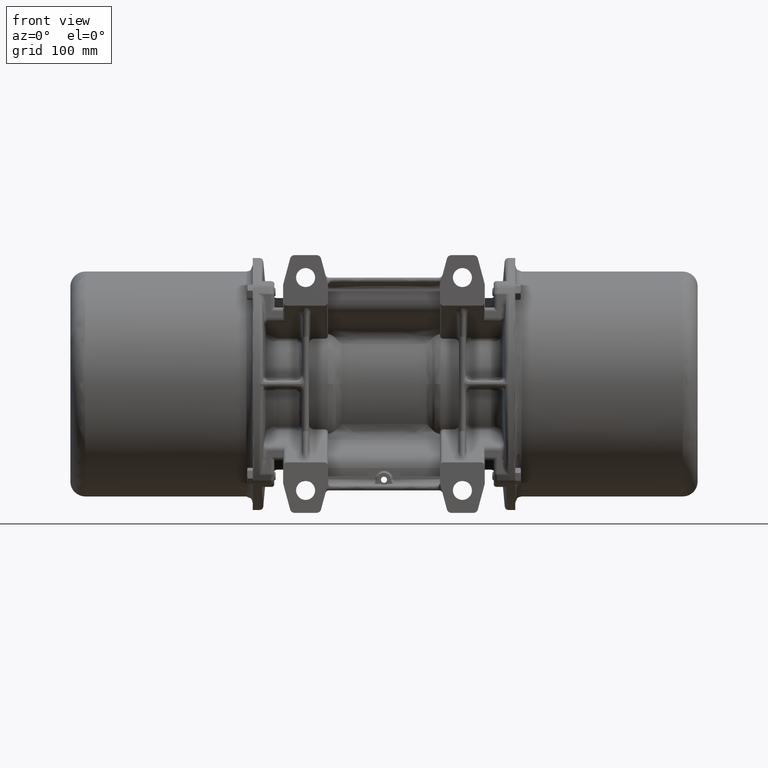
[diagram: clean part render]
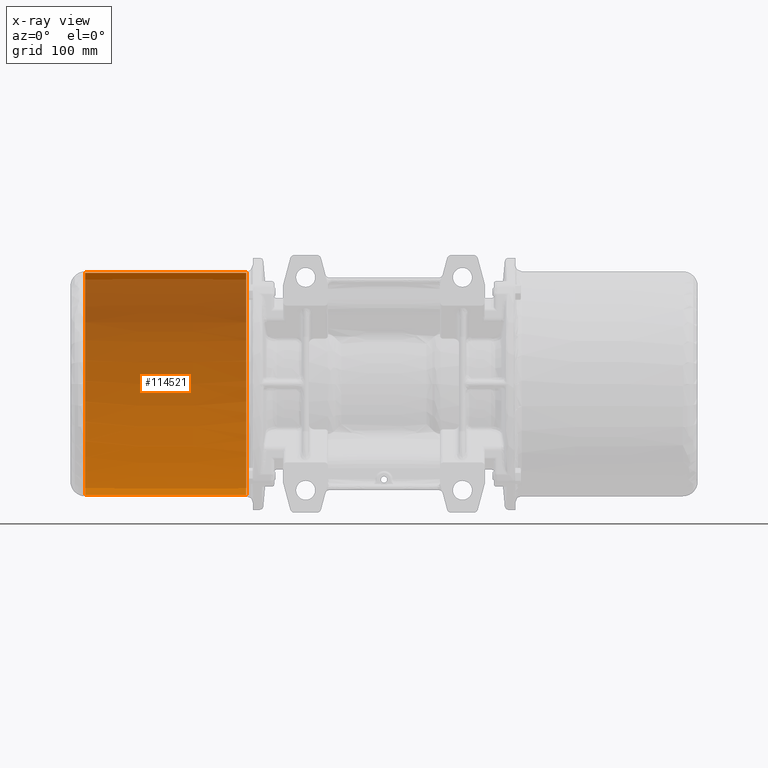
[diagram: x-ray — body ghosted, one internal face saturated and labeled with its STEP entity id]
A machine part, front view, then the same camera in x-ray: the body is ghosted and one INTERNAL B-rep face — a face not visible from any outside direction — is saturated and labeled: STEP entity #114521.
In plain terms, the highlighted face is a freeform B-spline surface patch.
Its self-contained STEP definition (entity closure, byte-faithful):
#501 = CARTESIAN_POINT ( 'NONE',  ( -306.7067428324685900, 843.3555497553845700, -29.50607960355228300 ) ) ;
#1627 = CARTESIAN_POINT ( 'NONE',  ( -306.7067431815569900, 832.7880172278133800, -9.400152092034208100 ) ) ;
#2650 = CARTESIAN_POINT ( 'NONE',  ( -258.7734125773110900, 750.1735939428388100, -163.8014404296875200 ) ) ;
#4951 = CARTESIAN_POINT ( 'NONE',  ( -162.9067439514763000, 809.4811444387470400, 15.36553385324496200 ) ) ;
#5115 = CARTESIAN_POINT ( 'NONE',  ( -162.9067459106439100, 750.1735907759760900, -163.8014404296874600 ) ) ;
#6086 = CARTESIAN_POINT ( 'NONE',  ( -306.7067459106446000, 750.1735953455603300, 34.59855957031254500 ) ) ;
#7764 = CARTESIAN_POINT ( 'NONE',  ( -306.7067435785356800, 820.7707547944363600, -135.1985983579489000 ) ) ;
#8326 = CARTESIAN_POINT ( 'NONE',  ( -210.8400765017072200, 833.1870774678807300, -120.0692846487887900 ) ) ;
#8892 = CARTESIAN_POINT ( 'NONE',  ( -210.8400763492934700, 837.8009189029174900, -17.76430248080657000 ) ) ;
#9454 = CARTESIAN_POINT ( 'NONE',  ( -210.8400761969310200, 842.4132056588847500, -102.8083078675234200 ) ) ;
#9865 = VERTEX_POINT ( 'NONE', #164837 ) ;
#10013 = CARTESIAN_POINT ( 'NONE',  ( -306.7067428635980900, 842.4132088257474600, -102.8083078675234200 ) ) ;
#10569 = CARTESIAN_POINT ( 'NONE',  ( -210.8400810763037000, 694.7057585076121300, -147.6149203774741900 ) ) ;
#11127 = CARTESIAN_POINT ( 'NONE',  ( -162.9067481955770500, 681.0045267565442400, 6.857899584304050200 ) ) ;
#11675 = CARTESIAN_POINT ( 'NONE',  ( -258.7734148622442400, 681.0045299234069500, 6.857899584304050200 ) ) ;
#12226 = CARTESIAN_POINT ( 'NONE',  ( -306.7067471727729100, 711.9666874690906300, -156.8410761253403200 ) ) ;
#12470 = CARTESIAN_POINT ( 'NONE',  ( -306.7067446485163500, 788.3805035707703200, -156.8410760557398200 ) ) ;
#12802 = CARTESIAN_POINT ( 'NONE',  ( -210.8400815760864800, 679.5764330391363000, -135.1985984865539200 ) ) ;
#13365 = CARTESIAN_POINT ( 'NONE',  ( -210.8400792439775300, 750.1735921786976200, 34.59855957031254500 ) ) ;
#13611 = CARTESIAN_POINT ( 'NONE',  ( -306.7067433734426300, 826.9792945757411600, -1.568328585149714200 ) ) ;
#14737 = CARTESIAN_POINT ( 'NONE',  ( -306.7067426758778200, 848.0958409885503200, -45.12584019565879600 ) ) ;
#15067 = CARTESIAN_POINT ( 'NONE',  ( -306.7067471667125500, 712.1501538450767200, 27.19458294460308400 ) ) ;
#16326 = B_SPLINE_CURVE_WITH_KNOTS ( 'NONE', 3,
 ( #74979, #51038, #64123, #154385 ),
 .UNSPECIFIED., .F., .F.,
 ( 4, 4 ),
 ( 0.0000000000000000000, 143.8000000000008100 ),
 .UNSPECIFIED. ) ;
#19162 = CARTESIAN_POINT ( 'NONE',  ( -162.9067452703144500, 769.5575181513195300, 32.84886395532421200 ) ) ;
#19330 = CARTESIAN_POINT ( 'NONE',  ( -162.9067443149813200, 798.4771825879279300, 22.33277670473305000 ) ) ;
#19761 = EDGE_LOOP ( 'NONE', ( #60761, #131341, #113529, #37569 ) ) ;
#20293 = CARTESIAN_POINT ( 'NONE',  ( -210.8400792439775300, 750.1735921786976200, 34.59855957031254500 ) ) ;
#20843 = CARTESIAN_POINT ( 'NONE',  ( -306.7067440783183100, 805.6414293485792100, -147.6149202764299800 ) ) ;
#21395 = CARTESIAN_POINT ( 'NONE',  ( -258.7734100401093500, 826.9792929923097500, -1.568328585149603200 ) ) ;
#21953 = CARTESIAN_POINT ( 'NONE',  ( -258.7734125773110300, 750.1735939434213400, -164.4409028246661300 ) ) ;
#22507 = CARTESIAN_POINT ( 'NONE',  ( -258.7734092792213100, 850.0127426643189200, -64.60087423456384700 ) ) ;
#23053 = CARTESIAN_POINT ( 'NONE',  ( -258.7734098350410400, 833.1870790513120300, -120.0692846487887900 ) ) ;
#23599 = CARTESIAN_POINT ( 'NONE',  ( -306.7067486529151700, 667.1601103381314000, -120.0692848000121700 ) ) ;
#24140 = CARTESIAN_POINT ( 'NONE',  ( -162.9067482427529700, 679.5764314557048900, -135.1985984865539200 ) ) ;
#24698 = CARTESIAN_POINT ( 'NONE',  ( -258.7734138394395100, 711.9666858856592200, -156.8410761253403200 ) ) ;
#25267 = CARTESIAN_POINT ( 'NONE',  ( -258.7734156554871600, 656.9916394690823200, -29.50607977329911000 ) ) ;
#25836 = CARTESIAN_POINT ( 'NONE',  ( -210.8400824787083300, 652.2524331045100300, -84.07930508046152300 ) ) ;
#26412 = CARTESIAN_POINT ( 'NONE',  ( -258.7734128990471200, 740.4340620263009200, 34.27960097513732800 ) ) ;
#26651 = CARTESIAN_POINT ( 'NONE',  ( -306.7067452703152500, 769.5575229016137700, 32.84886395532410600 ) ) ;
#27217 = CARTESIAN_POINT ( 'NONE',  ( -306.7067459106444900, 750.1735953455603300, 34.59855957031254500 ) ) ;
#27542 = CARTESIAN_POINT ( 'NONE',  ( -210.8400798843068700, 730.7896646258316200, 32.84886392001284600 ) ) ;
#27771 = CARTESIAN_POINT ( 'NONE',  ( -306.7067449578598800, 779.0161130593541000, 30.47969960946622700 ) ) ;
#31062 = CARTESIAN_POINT ( 'NONE',  ( -258.7734124701154300, 753.4186026243154400, 34.59855957326824000 ) ) ;
#31633 = CARTESIAN_POINT ( 'NONE',  ( -162.9067446545761000, 788.1970321092371700, 27.19458301386917800 ) ) ;
#32770 = CARTESIAN_POINT ( 'NONE',  ( -258.7734125773111500, 750.1735937621290300, 34.59855957031254500 ) ) ;
#33878 = CARTESIAN_POINT ( 'NONE',  ( -162.9067431815561800, 832.7880124775193700, -9.400152092034208100 ) ) ;
#34446 = CARTESIAN_POINT ( 'NONE',  ( -306.7067452672172900, 769.6513084283952800, -162.5225156219892700 ) ) ;
#35002 = CARTESIAN_POINT ( 'NONE',  ( -258.7734106181435400, 809.4811476056098600, 15.36553385324496200 ) ) ;
#35547 = CARTESIAN_POINT ( 'NONE',  ( -162.9067440783175000, 805.6414245982850800, -147.6149202764299800 ) ) ;
#36099 = CARTESIAN_POINT ( 'NONE',  ( -162.9067435785349600, 820.7707500441423500, -135.1985983579489000 ) ) ;
#36651 = CARTESIAN_POINT ( 'NONE',  ( -210.8400817811797500, 673.3678930144009200, -1.568328725064682700 ) ) ;
#37207 = CARTESIAN_POINT ( 'NONE',  ( -306.7067481955776300, 681.0045315068382500, 6.857899584304050200 ) ) ;
#37414 = FACE_OUTER_BOUND ( 'NONE', #19761, .T. ) ;
#37569 = ORIENTED_EDGE ( 'NONE', *, *, #121310, .F. ) ;
#37762 = CARTESIAN_POINT ( 'NONE',  ( -306.7067491453755700, 652.2524362713726300, -84.07930508046152300 ) ) ;
#38329 = CARTESIAN_POINT ( 'NONE',  ( -258.7734141729737300, 701.8700017918117700, 22.33277661673976800 ) ) ;
#38889 = CARTESIAN_POINT ( 'NONE',  ( -306.7067489888206600, 656.9916410525136100, -29.50607977329911000 ) ) ;
#39133 = CARTESIAN_POINT ( 'NONE',  ( -306.7067430159606800, 837.8009220697803100, -17.76430248080646000 ) ) ;
#40157 = CARTESIAN_POINT ( 'NONE',  ( -210.8400792439773600, 750.1735923594073900, -163.8014404296875200 ) ) ;
#40269 = CARTESIAN_POINT ( 'NONE',  ( -306.7067431683740900, 833.1870806347433200, -120.0692846487888500 ) ) ;
#41158 = CARTESIAN_POINT ( 'NONE',  ( -258.7734138333790400, 712.1501522616454200, 27.19458294460308400 ) ) ;
#42494 = B_SPLINE_SURFACE_WITH_KNOTS ( 'NONE', 3, 3, ( 
 ( #108840, #20293, #32770, #6086 ),
 ( #111100, #72482, #31062, #161046 ),
 ( #83880, #57711, #44118, #45793 ),
 ( #19162, #124201, #70252, #134978 ),
 ( #46346, #44685, #136649, #109403 ),
 ( #31633, #109975, #135541, #137207 ),
 ( #58825, #149669, #150224, #82767 ),
 ( #4951, #95809, #35002, #137767 ),
 ( #163814, #74714, #165492, #73593 ),
 ( #113879, #125884, #21395, #59933 ),
 ( #33878, #150775, #138896, #153042 ),
 ( #164940, #8892, #73035, #98596 ),
 ( #140012, #99721, #127003, #100829 ),
 ( #164369, #126443, #86681, #46896 ),
 ( #100269, #48577, #22507, #163268 ),
 ( #85551, #113318, #86102, #138330 ),
 ( #124757, #9454, #61061, #10013 ),
 ( #48026, #8326, #23053, #151902 ),
 ( #36099, #112757, #87806, #7764 ),
 ( #35547, #139449, #99153, #20843 ),
 ( #74159, #61619, #49138, #62191 ),
 ( #111649, #87243, #112194, #34446 ),
 ( #125325, #152473, #21953, #47469 ),
 ( #60498, #151339, #154130, #140560 ),
 ( #155244, #62746, #24698, #12226 ),
 ( #167712, #10569, #64431, #115551 ),
 ( #24140, #12802, #64995, #101381 ),
 ( #129221, #141105, #50236, #23599 ),
 ( #166046, #89485, #103608, #49686 ),
 ( #153587, #25836, #114988, #37762 ),
 ( #141665, #114425, #63294, #75838 ),
 ( #116681, #76396, #77530, #166590 ),
 ( #127557, #168276, #25267, #38889 ),
 ( #102466, #142783, #154676, #75281 ),
 ( #129780, #51913, #128662, #101920 ),
 ( #88375, #36651, #88941, #50782 ),
 ( #11127, #76956, #11675, #37207 ),
 ( #116114, #128106, #63868, #167148 ),
 ( #90044, #103037, #38329, #51349 ),
 ( #142230, #90606, #41158, #15067 ),
 ( #119530, #155807, #92851, #130344 ),
 ( #158052, #27542, #66675, #53043 ),
 ( #131462, #143924, #26412, #130905 ),
 ( #78643, #66117, #156931, #117256 ),
 ( #143355, #13365, #93404, #92289 ) ),
 .UNSPECIFIED., .T., .F., .F.,
 ( 4, 1, 1, 1, 1, 1, 1, 1, 1, 1, 1, 1, 1, 1, 1, 1, 1, 1, 1, 1, 1, 1, 1, 1, 1, 1, 1, 1, 1, 1, 1, 1, 1, 1, 1, 1, 1, 1, 1, 1, 1, 1, 4 ),
 ( 4, 4 ),
 ( 0.0000000000000000000, 9.735026586559731900, 19.47005317311946700, 29.20507975967919400, 38.94010634623892700, 48.67513293279865400, 63.27034235097269000, 77.86555176914669100, 87.60057835570640300, 97.33560494226613000, 107.0706315288258700, 116.8056581153856000, 136.2522587567704900, 155.6988593981552900, 175.1454600395401000, 194.5920606809249600, 214.0386613223097100, 233.4852619636945700, 252.9318626050794300, 272.3784632464641500, 291.8250638878489600, 311.2716645292338200, 330.7182651706186800, 350.1648658120034800, 369.6114664533882900, 389.0580670947730900, 408.5046677361579600, 427.9512683775427000, 447.3978690189275700, 466.8444696603124300, 486.2910703016972300, 505.7376709430820900, 515.4726975296417800, 525.2077241162014600, 534.9427507027611500, 544.6777772893209400, 559.2729867074949700, 573.8681961256688700, 583.6032227122286700, 593.3382492987883600, 603.0732758853481500, 612.8083024719079500, 622.5433290584676300 ),
 ( 0.0000000000000000000, 143.8000000000008100 ),
 .UNSPECIFIED. ) ;
#44118 = CARTESIAN_POINT ( 'NONE',  ( -258.7734122555751800, 759.9131254985380800, 34.27960099287946600 ) ) ;
#44685 = CARTESIAN_POINT ( 'NONE',  ( -210.8400782911927800, 779.0161098924915000, 30.47969960946611700 ) ) ;
#45793 = CARTESIAN_POINT ( 'NONE',  ( -306.7067455889086300, 759.9131270819693800, 34.27960099287946600 ) ) ;
#46346 = CARTESIAN_POINT ( 'NONE',  ( -162.9067449578591600, 779.0161083090600900, 30.47969960946611700 ) ) ;
#46896 = CARTESIAN_POINT ( 'NONE',  ( -306.7067426758779300, 848.0958409885503200, -45.12584019565862500 ) ) ;
#47469 = CARTESIAN_POINT ( 'NONE',  ( -306.7067459106443700, 750.1735955268527500, -164.4409028246661300 ) ) ;
#48026 = CARTESIAN_POINT ( 'NONE',  ( -162.9067431683736200, 833.1870758844493100, -120.0692846487887900 ) ) ;
#48577 = CARTESIAN_POINT ( 'NONE',  ( -210.8400759458876100, 850.0127410808875100, -64.60087423456384700 ) ) ;
#49138 = CARTESIAN_POINT ( 'NONE',  ( -258.7734113151829500, 788.3805019873389000, -156.8410760557398200 ) ) ;
#49686 = CARTESIAN_POINT ( 'NONE',  ( -306.7067489576912200, 657.9339821156835300, -102.8083080355538500 ) ) ;
#49922 = CARTESIAN_POINT ( 'NONE',  ( -306.7067459106444900, 750.1735955262702200, -163.8014404296874600 ) ) ;
#50236 = CARTESIAN_POINT ( 'NONE',  ( -258.7734153195816600, 667.1601087547001000, -120.0692848000121700 ) ) ;
#50782 = CARTESIAN_POINT ( 'NONE',  ( -306.7067484478469600, 673.3678961812637500, -1.568328725064682700 ) ) ;
#51038 = CARTESIAN_POINT ( 'NONE',  ( -210.8400792439775300, 750.1735921786976200, 34.59855957031254500 ) ) ;
#51349 = CARTESIAN_POINT ( 'NONE',  ( -306.7067475063071200, 701.8700033752431900, 22.33277661673976800 ) ) ;
#51590 = CARTESIAN_POINT ( 'NONE',  ( -306.7067435785357900, 820.7707547944363600, -135.1985983579489000 ) ) ;
#51913 = CARTESIAN_POINT ( 'NONE',  ( -210.8400819730649100, 667.5591703765957200, -9.400152242530657200 ) ) ;
#52155 = CARTESIAN_POINT ( 'NONE',  ( -306.7067456961688700, 756.6661664940335200, -163.8014404237738100 ) ) ;
#53043 = CARTESIAN_POINT ( 'NONE',  ( -306.7067465509740600, 730.7896677926943300, 32.84886392001284600 ) ) ;
#53090 = EDGE_CURVE ( 'NONE', #116266, #137510, #16326, .T. ) ;
#57318 = CARTESIAN_POINT ( 'NONE',  ( -162.9067433734419100, 826.9792898254474900, -1.568328585149603800 ) ) ;
#57711 = CARTESIAN_POINT ( 'NONE',  ( -210.8400789222415600, 759.9131239151066700, 34.27960099287946600 ) ) ;
#58825 = CARTESIAN_POINT ( 'NONE',  ( -162.9067443149813200, 798.4771825879275900, 22.33277670473305000 ) ) ;
#59933 = CARTESIAN_POINT ( 'NONE',  ( -306.7067433734429200, 826.9792945757411600, -1.568328585149603200 ) ) ;
#60498 = CARTESIAN_POINT ( 'NONE',  ( -162.9067465540712200, 730.6958778715213600, -162.5225156574713300 ) ) ;
#60761 = ORIENTED_EDGE ( 'NONE', *, *, #110843, .F. ) ;
#61061 = CARTESIAN_POINT ( 'NONE',  ( -258.7734095302647600, 842.4132072423160500, -102.8083078675234200 ) ) ;
#61619 = CARTESIAN_POINT ( 'NONE',  ( -210.8400779818492200, 788.3805004039074900, -156.8410760557398200 ) ) ;
#62191 = CARTESIAN_POINT ( 'NONE',  ( -306.7067446485163500, 788.3805035707703200, -156.8410760557398200 ) ) ;
#62746 = CARTESIAN_POINT ( 'NONE',  ( -210.8400805061058100, 711.9666843022280300, -156.8410761253403200 ) ) ;
#63294 = CARTESIAN_POINT ( 'NONE',  ( -258.7734158754009300, 650.3344450406480100, -64.60087441643807400 ) ) ;
#63868 = CARTESIAN_POINT ( 'NONE',  ( -258.7734145364789200, 690.8660399536842100, 15.36553374520588400 ) ) ;
#64123 = CARTESIAN_POINT ( 'NONE',  ( -258.7734125773111500, 750.1735937621290300, 34.59855957031254500 ) ) ;
#64431 = CARTESIAN_POINT ( 'NONE',  ( -258.7734144096374400, 694.7057600910434300, -147.6149203774741900 ) ) ;
#64995 = CARTESIAN_POINT ( 'NONE',  ( -258.7734149094199600, 679.5764346225677200, -135.1985984865539200 ) ) ;
#66117 = CARTESIAN_POINT ( 'NONE',  ( -210.8400793511732200, 746.9285833165109800, 34.59855956735685800 ) ) ;
#66675 = CARTESIAN_POINT ( 'NONE',  ( -258.7734132176405500, 730.7896662092629200, 32.84886392001284600 ) ) ;
#67360 = CARTESIAN_POINT ( 'NONE',  ( -162.9067459106439100, 750.1735907759760900, -163.8014404296874600 ) ) ;
#69847 = CARTESIAN_POINT ( 'NONE',  ( -162.9067431683736200, 833.1870758844496500, -120.0692846487888400 ) ) ;
#70252 = CARTESIAN_POINT ( 'NONE',  ( -258.7734119369818000, 769.5575213181823500, 32.84886395532421200 ) ) ;
#71541 = CARTESIAN_POINT ( 'NONE',  ( -162.9067456961680300, 756.6661617437393900, -163.8014404237738400 ) ) ;
#72482 = CARTESIAN_POINT ( 'NONE',  ( -210.8400791367818100, 753.4186010408842500, 34.59855957326824000 ) ) ;
#73035 = CARTESIAN_POINT ( 'NONE',  ( -258.7734096826270600, 837.8009204863489000, -17.76430248080657000 ) ) ;
#73593 = CARTESIAN_POINT ( 'NONE',  ( -306.7067436257109400, 819.3426592348166700, 6.857899710307369100 ) ) ;
#74159 = CARTESIAN_POINT ( 'NONE',  ( -162.9067446485157400, 788.3804988204761900, -156.8410760557398200 ) ) ;
#74515 = B_SPLINE_CURVE_WITH_KNOTS ( 'NONE', 3,
 ( #67360, #40157, #2650, #92978 ),
 .UNSPECIFIED., .F., .F.,
 ( 4, 4 ),
 ( 0.0000000000000000000, 143.8000000000008100 ),
 .UNSPECIFIED. ) ;
#74708 = B_SPLINE_CURVE_WITH_KNOTS ( 'NONE', 3,
 ( #49922, #52155, #116925, #12470, #92514, #51590, #40269, #116358, #91415, #157171, #14737, #501, #39133, #1627, #13611, #104399, #105530, #130586, #90283, #27771, #26651, #131134, #130015, #27217 ),
 .UNSPECIFIED., .F., .F.,
 ( 4, 1, 1, 1, 1, 1, 1, 1, 1, 1, 1, 1, 1, 1, 1, 1, 1, 1, 1, 1, 1, 4 ),
 ( 0.0000000000000000000, 0.06247468965990149400, 0.1249493793198027900, 0.1874240689797040900, 0.2498987586396055900, 0.3123734482995070800, 0.3748481379594084100, 0.4373228276193096800, 0.4997975172792111800, 0.5622722069391125100, 0.6247468965990139500, 0.6560219135565741300, 0.6872969305141342100, 0.7185719474716941700, 0.7498469644292542500, 0.7967359398207269900, 0.8436249152121996200, 0.8748999321697598100, 0.9061749491273198800, 0.9374499660848799600, 0.9687249830424399200, 1.000000000000000000 ),
 .UNSPECIFIED. ) ;
#74714 = CARTESIAN_POINT ( 'NONE',  ( -210.8400769590440400, 819.3426560679539500, 6.857899710307369100 ) ) ;
#74979 = CARTESIAN_POINT ( 'NONE',  ( -162.9067459106439100, 750.1735905952662100, 34.59855957031254500 ) ) ;
#75281 = CARTESIAN_POINT ( 'NONE',  ( -306.7067488053286900, 662.5462687167282600, -17.76430264043482800 ) ) ;
#75838 = CARTESIAN_POINT ( 'NONE',  ( -306.7067492087344400, 650.3344466240791900, -64.60087441643807400 ) ) ;
#76396 = CARTESIAN_POINT ( 'NONE',  ( -210.8400824787441900, 652.2513466809393800, -45.12584037404110400 ) ) ;
#76956 = CARTESIAN_POINT ( 'NONE',  ( -210.8400815289105300, 681.0045283399756500, 6.857899584304050200 ) ) ;
#77530 = CARTESIAN_POINT ( 'NONE',  ( -258.7734158120779300, 652.2513482643707900, -45.12584037404110400 ) ) ;
#78643 = CARTESIAN_POINT ( 'NONE',  ( -162.9067460178396200, 746.9285817330796800, 34.59855956735685800 ) ) ;
#82767 = CARTESIAN_POINT ( 'NONE',  ( -306.7067443149821300, 798.4771873382217100, 22.33277670473305000 ) ) ;
#82925 = CARTESIAN_POINT ( 'NONE',  ( -162.9067430159598800, 837.8009173194864200, -17.76430248080657000 ) ) ;
#83880 = CARTESIAN_POINT ( 'NONE',  ( -162.9067455889079400, 759.9131223316752500, 34.27960099287946600 ) ) ;
#84046 = CARTESIAN_POINT ( 'NONE',  ( -162.9067428635975100, 842.4132040754536800, -102.8083078675234700 ) ) ;
#84599 = CARTESIAN_POINT ( 'NONE',  ( -162.9067459106439100, 750.1735905952662100, 34.59855957031254500 ) ) ;
#85157 = CARTESIAN_POINT ( 'NONE',  ( -162.9067458034482200, 753.4185994574531800, 34.59855957326824000 ) ) ;
#85551 = CARTESIAN_POINT ( 'NONE',  ( -162.9067426759128800, 848.0947498856461400, -84.07930490208109100 ) ) ;
#86102 = CARTESIAN_POINT ( 'NONE',  ( -258.7734093425800700, 848.0947530525088500, -84.07930490208109100 ) ) ;
#86681 = CARTESIAN_POINT ( 'NONE',  ( -258.7734093425444300, 848.0958394051189100, -45.12584019565862500 ) ) ;
#87243 = CARTESIAN_POINT ( 'NONE',  ( -210.8400786005501000, 769.6513052615325700, -162.5225156219892700 ) ) ;
#87806 = CARTESIAN_POINT ( 'NONE',  ( -258.7734102452021700, 820.7707532110051700, -135.1985983579489000 ) ) ;
#88375 = CARTESIAN_POINT ( 'NONE',  ( -162.9067484478461300, 673.3678914309696200, -1.568328725064682700 ) ) ;
#88941 = CARTESIAN_POINT ( 'NONE',  ( -258.7734151145134500, 673.3678945978323300, -1.568328725064682700 ) ) ;
#89485 = CARTESIAN_POINT ( 'NONE',  ( -210.8400822910241500, 657.9339789488208200, -102.8083080355538500 ) ) ;
#90044 = CARTESIAN_POINT ( 'NONE',  ( -162.9067475063065200, 701.8699986249490600, 22.33277661673976800 ) ) ;
#90283 = CARTESIAN_POINT ( 'NONE',  ( -306.7067446545769400, 788.1970368595314100, 27.19458301386928800 ) ) ;
#90606 = CARTESIAN_POINT ( 'NONE',  ( -210.8400805000453300, 712.1501506782141200, 27.19458294460308400 ) ) ;
#91415 = CARTESIAN_POINT ( 'NONE',  ( -306.7067426759134600, 848.0947546359401500, -84.07930490208120500 ) ) ;
#92289 = CARTESIAN_POINT ( 'NONE',  ( -306.7067459106446000, 750.1735953455603300, 34.59855957031254500 ) ) ;
#92514 = CARTESIAN_POINT ( 'NONE',  ( -306.7067440783183100, 805.6414293485790900, -147.6149202764299800 ) ) ;
#92851 = CARTESIAN_POINT ( 'NONE',  ( -258.7734135300957500, 721.3310760558382500, 30.47969955692453300 ) ) ;
#92978 = CARTESIAN_POINT ( 'NONE',  ( -306.7067459106444900, 750.1735955262702200, -163.8014404296874600 ) ) ;
#93404 = CARTESIAN_POINT ( 'NONE',  ( -258.7734125773111500, 750.1735937621290300, 34.59855957031254500 ) ) ;
#95571 = CARTESIAN_POINT ( 'NONE',  ( -306.7067459106444900, 750.1735953455603300, 34.59855957031254500 ) ) ;
#95809 = CARTESIAN_POINT ( 'NONE',  ( -210.8400772848099200, 809.4811460221784500, 15.36553385324496200 ) ) ;
#95976 = CARTESIAN_POINT ( 'NONE',  ( -162.9067452703144500, 769.5575181513198700, 32.84886395532421200 ) ) ;
#97650 = CARTESIAN_POINT ( 'NONE',  ( -162.9067426125540100, 850.0127394974564400, -64.60087423456384700 ) ) ;
#98213 = CARTESIAN_POINT ( 'NONE',  ( -162.9067436257105600, 819.3426544845228800, 6.857899710307371800 ) ) ;
#98596 = CARTESIAN_POINT ( 'NONE',  ( -306.7067430159605700, 837.8009220697803100, -17.76430248080657000 ) ) ;
#99153 = CARTESIAN_POINT ( 'NONE',  ( -258.7734107449848600, 805.6414277651478000, -147.6149202764299800 ) ) ;
#99721 = CARTESIAN_POINT ( 'NONE',  ( -210.8400761658015800, 843.3555465885218600, -29.50607960355228300 ) ) ;
#100269 = CARTESIAN_POINT ( 'NONE',  ( -162.9067426125540100, 850.0127394974561000, -64.60087423456384700 ) ) ;
#100829 = CARTESIAN_POINT ( 'NONE',  ( -306.7067428324687100, 843.3555497553845700, -29.50607960355228300 ) ) ;
#101381 = CARTESIAN_POINT ( 'NONE',  ( -306.7067482427533500, 679.5764362059990200, -135.1985984865539200 ) ) ;
#101920 = CARTESIAN_POINT ( 'NONE',  ( -306.7067486397320400, 667.5591735434584300, -9.400152242530657200 ) ) ;
#102466 = CARTESIAN_POINT ( 'NONE',  ( -162.9067488053279600, 662.5462639664342500, -17.76430264043482800 ) ) ;
#103037 = CARTESIAN_POINT ( 'NONE',  ( -210.8400808396400000, 701.8700002083803600, 22.33277661673976800 ) ) ;
#103608 = CARTESIAN_POINT ( 'NONE',  ( -258.7734156243577700, 657.9339805322521200, -102.8083080355538500 ) ) ;
#104399 = CARTESIAN_POINT ( 'NONE',  ( -306.7067436257114000, 819.3426592348167800, 6.857899710307480100 ) ) ;
#104607 = EDGE_CURVE ( 'NONE', #130700, #116266, #124937, .T. ) ;
#105530 = CARTESIAN_POINT ( 'NONE',  ( -306.7067439514768800, 809.4811491890411600, 15.36553385324485000 ) ) ;
#107000 = CARTESIAN_POINT ( 'NONE',  ( -162.9067459106439100, 750.1735907759760900, -163.8014404296874600 ) ) ;
#108840 = CARTESIAN_POINT ( 'NONE',  ( -162.9067459106439100, 750.1735905952662100, 34.59855957031254500 ) ) ;
#109403 = CARTESIAN_POINT ( 'NONE',  ( -306.7067449578598800, 779.0161130593541000, 30.47969960946611700 ) ) ;
#109575 = CARTESIAN_POINT ( 'NONE',  ( -162.9067439514763000, 809.4811444387473800, 15.36553385324496700 ) ) ;
#109975 = CARTESIAN_POINT ( 'NONE',  ( -210.8400779879097200, 788.1970336926685800, 27.19458301386917800 ) ) ;
#110144 = CARTESIAN_POINT ( 'NONE',  ( -162.9067455889079400, 759.9131223316755900, 34.27960099287946600 ) ) ;
#110705 = CARTESIAN_POINT ( 'NONE',  ( -162.9067440783175000, 805.6414245982853100, -147.6149202764299800 ) ) ;
#110843 = EDGE_CURVE ( 'NONE', #130700, #9865, #74515, .T. ) ;
#111100 = CARTESIAN_POINT ( 'NONE',  ( -162.9067458034482200, 753.4185994574528400, 34.59855957326824000 ) ) ;
#111649 = CARTESIAN_POINT ( 'NONE',  ( -162.9067452672164800, 769.6513036781011600, -162.5225156219892700 ) ) ;
#112194 = CARTESIAN_POINT ( 'NONE',  ( -258.7734119338838400, 769.6513068449639800, -162.5225156219892700 ) ) ;
#112757 = CARTESIAN_POINT ( 'NONE',  ( -210.8400769118685800, 820.7707516275737600, -135.1985983579489000 ) ) ;
#113318 = CARTESIAN_POINT ( 'NONE',  ( -210.8400760092464700, 848.0947514690774400, -84.07930490208109100 ) ) ;
#113529 = ORIENTED_EDGE ( 'NONE', *, *, #53090, .T. ) ;
#113879 = CARTESIAN_POINT ( 'NONE',  ( -162.9067433734419100, 826.9792898254471500, -1.568328585149603200 ) ) ;
#114425 = CARTESIAN_POINT ( 'NONE',  ( -210.8400825420673100, 650.3344434572165900, -64.60087441643807400 ) ) ;
#114521 = ADVANCED_FACE ( 'NONE', ( #37414 ), #42494, .F. ) ;
#114988 = CARTESIAN_POINT ( 'NONE',  ( -258.7734158120420600, 652.2524346879412200, -84.07930508046152300 ) ) ;
#115551 = CARTESIAN_POINT ( 'NONE',  ( -306.7067477429708900, 694.7057616744748400, -147.6149203774741900 ) ) ;
#116114 = CARTESIAN_POINT ( 'NONE',  ( -162.9067478698115100, 690.8660367868215000, 15.36553374520588400 ) ) ;
#116266 = VERTEX_POINT ( 'NONE', #128550 ) ;
#116358 = CARTESIAN_POINT ( 'NONE',  ( -306.7067428635982100, 842.4132088257474600, -102.8083078675234200 ) ) ;
#116681 = CARTESIAN_POINT ( 'NONE',  ( -162.9067491454106000, 652.2513450975080800, -45.12584037404110400 ) ) ;
#116925 = CARTESIAN_POINT ( 'NONE',  ( -306.7067452672170600, 769.6513084283952800, -162.5225156219892700 ) ) ;
#117256 = CARTESIAN_POINT ( 'NONE',  ( -306.7067460178403200, 746.9285864833736900, 34.59855956735685800 ) ) ;
#119530 = CARTESIAN_POINT ( 'NONE',  ( -162.9067468634285400, 721.3310728889755400, 30.47969955692453300 ) ) ;
#121310 = EDGE_CURVE ( 'NONE', #9865, #137510, #74708, .T. ) ;
#122685 = CARTESIAN_POINT ( 'NONE',  ( -162.9067435785349600, 820.7707500441426900, -135.1985983579489000 ) ) ;
#124201 = CARTESIAN_POINT ( 'NONE',  ( -210.8400786036480700, 769.5575197347509400, 32.84886395532421200 ) ) ;
#124757 = CARTESIAN_POINT ( 'NONE',  ( -162.9067428635975100, 842.4132040754533400, -102.8083078675234200 ) ) ;
#124937 = B_SPLINE_CURVE_WITH_KNOTS ( 'NONE', 3,
 ( #5115, #71541, #160653, #135137, #110705, #122685, #69847, #84046, #149837, #97650, #148728, #162878, #82925, #147595, #57318, #98213, #109575, #19330, #161204, #162323, #95976, #110144, #85157, #84599 ),
 .UNSPECIFIED., .F., .F.,
 ( 4, 1, 1, 1, 1, 1, 1, 1, 1, 1, 1, 1, 1, 1, 1, 1, 1, 1, 1, 1, 1, 4 ),
 ( 0.0000000000000000000, 0.06247468965990152900, 0.1249493793198028800, 0.1874240689797039600, 0.2498987586396054800, 0.3123734482995070300, 0.3748481379594081900, 0.4373228276193096800, 0.4997975172792110700, 0.5622722069391124000, 0.6247468965990140600, 0.6560219135565741300, 0.6872969305141342100, 0.7185719474716941700, 0.7498469644292541400, 0.7967359398207268800, 0.8436249152121997300, 0.8748999321697598100, 0.9061749491273198800, 0.9374499660848798500, 0.9687249830424399200, 1.000000000000000000 ),
 .UNSPECIFIED. ) ;
#125325 = CARTESIAN_POINT ( 'NONE',  ( -162.9067459106437900, 750.1735907765586300, -164.4409028246661300 ) ) ;
#125884 = CARTESIAN_POINT ( 'NONE',  ( -210.8400767067756200, 826.9792914088784500, -1.568328585149603200 ) ) ;
#126443 = CARTESIAN_POINT ( 'NONE',  ( -210.8400760092108300, 848.0958378216875000, -45.12584019565862500 ) ) ;
#127003 = CARTESIAN_POINT ( 'NONE',  ( -258.7734094991352000, 843.3555481719532700, -29.50607960355228300 ) ) ;
#127557 = CARTESIAN_POINT ( 'NONE',  ( -162.9067489888198600, 656.9916363022196000, -29.50607977329911000 ) ) ;
#128106 = CARTESIAN_POINT ( 'NONE',  ( -210.8400812031451300, 690.8660383702528000, 15.36553374520588400 ) ) ;
#128550 = CARTESIAN_POINT ( 'NONE',  ( -162.9067459106439100, 750.1735905952662100, 34.59855957031254500 ) ) ;
#128662 = CARTESIAN_POINT ( 'NONE',  ( -258.7734153063986500, 667.5591719600271300, -9.400152242530657200 ) ) ;
#129221 = CARTESIAN_POINT ( 'NONE',  ( -162.9067486529142200, 667.1601055878373900, -120.0692848000121700 ) ) ;
#129780 = CARTESIAN_POINT ( 'NONE',  ( -162.9067486397314300, 667.5591687931643000, -9.400152242530657200 ) ) ;
#130015 = CARTESIAN_POINT ( 'NONE',  ( -306.7067458034489400, 753.4186042077468500, 34.59855957326824000 ) ) ;
#130344 = CARTESIAN_POINT ( 'NONE',  ( -306.7067468634292600, 721.3310776392696700, 30.47969955692453300 ) ) ;
#130586 = CARTESIAN_POINT ( 'NONE',  ( -306.7067443149820200, 798.4771873382217100, 22.33277670473305000 ) ) ;
#130700 = VERTEX_POINT ( 'NONE', #107000 ) ;
#130905 = CARTESIAN_POINT ( 'NONE',  ( -306.7067462323805700, 740.4340636097323300, 34.27960097513732800 ) ) ;
#131134 = CARTESIAN_POINT ( 'NONE',  ( -306.7067455889086300, 759.9131270819693800, 34.27960099287940900 ) ) ;
#131341 = ORIENTED_EDGE ( 'NONE', *, *, #104607, .T. ) ;
#131462 = CARTESIAN_POINT ( 'NONE',  ( -162.9067462323798700, 740.4340588594381000, 34.27960097513732800 ) ) ;
#134978 = CARTESIAN_POINT ( 'NONE',  ( -306.7067452703152500, 769.5575229016136500, 32.84886395532421200 ) ) ;
#135137 = CARTESIAN_POINT ( 'NONE',  ( -162.9067446485157400, 788.3804988204765300, -156.8410760557398200 ) ) ;
#135541 = CARTESIAN_POINT ( 'NONE',  ( -258.7734113212433200, 788.1970352761000000, 27.19458301386917800 ) ) ;
#136649 = CARTESIAN_POINT ( 'NONE',  ( -258.7734116245263700, 779.0161114759229100, 30.47969960946611700 ) ) ;
#137207 = CARTESIAN_POINT ( 'NONE',  ( -306.7067446545768200, 788.1970368595314100, 27.19458301386917800 ) ) ;
#137510 = VERTEX_POINT ( 'NONE', #95571 ) ;
#137767 = CARTESIAN_POINT ( 'NONE',  ( -306.7067439514769900, 809.4811491890412800, 15.36553385324496200 ) ) ;
#138330 = CARTESIAN_POINT ( 'NONE',  ( -306.7067426759135700, 848.0947546359401500, -84.07930490208109100 ) ) ;
#138896 = CARTESIAN_POINT ( 'NONE',  ( -258.7734098482232500, 832.7880156443820900, -9.400152092034208100 ) ) ;
#139449 = CARTESIAN_POINT ( 'NONE',  ( -210.8400774116511200, 805.6414261817163800, -147.6149202764299800 ) ) ;
#140012 = CARTESIAN_POINT ( 'NONE',  ( -162.9067428324679800, 843.3555450050905600, -29.50607960355228300 ) ) ;
#140560 = CARTESIAN_POINT ( 'NONE',  ( -306.7067465540719100, 730.6958826218154900, -162.5225156574713300 ) ) ;
#141105 = CARTESIAN_POINT ( 'NONE',  ( -210.8400819862478100, 667.1601071712686900, -120.0692848000121700 ) ) ;
#141665 = CARTESIAN_POINT ( 'NONE',  ( -162.9067492087337100, 650.3344418737851800, -64.60087441643807400 ) ) ;
#142230 = CARTESIAN_POINT ( 'NONE',  ( -162.9067471667117100, 712.1501490947827100, 27.19458294460308400 ) ) ;
#142783 = CARTESIAN_POINT ( 'NONE',  ( -210.8400821386615600, 662.5462655498656700, -17.76430264043482800 ) ) ;
#143355 = CARTESIAN_POINT ( 'NONE',  ( -162.9067459106439100, 750.1735905952662100, 34.59855957031254500 ) ) ;
#143924 = CARTESIAN_POINT ( 'NONE',  ( -210.8400795657134900, 740.4340604428695100, 34.27960097513732800 ) ) ;
#147595 = CARTESIAN_POINT ( 'NONE',  ( -162.9067431815561800, 832.7880124775196000, -9.400152092034208100 ) ) ;
#148728 = CARTESIAN_POINT ( 'NONE',  ( -162.9067426758772400, 848.0958362382564200, -45.12584019565862500 ) ) ;
#149669 = CARTESIAN_POINT ( 'NONE',  ( -210.8400776483149200, 798.4771841713588900, 22.33277670473305000 ) ) ;
#149837 = CARTESIAN_POINT ( 'NONE',  ( -162.9067426759128800, 848.0947498856464800, -84.07930490208109100 ) ) ;
#150224 = CARTESIAN_POINT ( 'NONE',  ( -258.7734109816486200, 798.4771857547903000, 22.33277670473305000 ) ) ;
#150775 = CARTESIAN_POINT ( 'NONE',  ( -210.8400765148896900, 832.7880140609506700, -9.400152092034208100 ) ) ;
#151339 = CARTESIAN_POINT ( 'NONE',  ( -210.8400798874048400, 730.6958794549527700, -162.5225156574713300 ) ) ;
#151902 = CARTESIAN_POINT ( 'NONE',  ( -306.7067431683745400, 833.1870806347434400, -120.0692846487887900 ) ) ;
#152473 = CARTESIAN_POINT ( 'NONE',  ( -210.8400792439773000, 750.1735923599899300, -164.4409028246661300 ) ) ;
#153042 = CARTESIAN_POINT ( 'NONE',  ( -306.7067431815566500, 832.7880172278133800, -9.400152092034208100 ) ) ;
#153587 = CARTESIAN_POINT ( 'NONE',  ( -162.9067491453747300, 652.2524315210786200, -84.07930508046152300 ) ) ;
#154130 = CARTESIAN_POINT ( 'NONE',  ( -258.7734132207384600, 730.6958810383840700, -162.5225156574713300 ) ) ;
#154385 = CARTESIAN_POINT ( 'NONE',  ( -306.7067459106444900, 750.1735953455603300, 34.59855957031254500 ) ) ;
#154676 = CARTESIAN_POINT ( 'NONE',  ( -258.7734154719951800, 662.5462671332969600, -17.76430264043482800 ) ) ;
#155244 = CARTESIAN_POINT ( 'NONE',  ( -162.9067471727723300, 711.9666827187966200, -156.8410761253403200 ) ) ;
#155807 = CARTESIAN_POINT ( 'NONE',  ( -210.8400801967621600, 721.3310744724068400, 30.47969955692453300 ) ) ;
#156931 = CARTESIAN_POINT ( 'NONE',  ( -258.7734126845068100, 746.9285848999423900, 34.59855956735685800 ) ) ;
#157171 = CARTESIAN_POINT ( 'NONE',  ( -306.7067426125548200, 850.0127442477503300, -64.60087423456373300 ) ) ;
#158052 = CARTESIAN_POINT ( 'NONE',  ( -162.9067465509732500, 730.7896630424002100, 32.84886392001284600 ) ) ;
#160653 = CARTESIAN_POINT ( 'NONE',  ( -162.9067452672164800, 769.6513036781013900, -162.5225156219893300 ) ) ;
#161046 = CARTESIAN_POINT ( 'NONE',  ( -306.7067458034489400, 753.4186042077468500, 34.59855957326824000 ) ) ;
#161204 = CARTESIAN_POINT ( 'NONE',  ( -162.9067446545761000, 788.1970321092375100, 27.19458301386918800 ) ) ;
#162323 = CARTESIAN_POINT ( 'NONE',  ( -162.9067449578591600, 779.0161083090604300, 30.47969960946612700 ) ) ;
#162878 = CARTESIAN_POINT ( 'NONE',  ( -162.9067428324679800, 843.3555450050909000, -29.50607960355229400 ) ) ;
#163268 = CARTESIAN_POINT ( 'NONE',  ( -306.7067426125548200, 850.0127442477502200, -64.60087423456384700 ) ) ;
#163814 = CARTESIAN_POINT ( 'NONE',  ( -162.9067436257105600, 819.3426544845225400, 6.857899710307369100 ) ) ;
#164369 = CARTESIAN_POINT ( 'NONE',  ( -162.9067426758772400, 848.0958362382560800, -45.12584019565862500 ) ) ;
#164837 = CARTESIAN_POINT ( 'NONE',  ( -306.7067459106444900, 750.1735955262702200, -163.8014404296874600 ) ) ;
#164940 = CARTESIAN_POINT ( 'NONE',  ( -162.9067430159598800, 837.8009173194861900, -17.76430248080657000 ) ) ;
#165492 = CARTESIAN_POINT ( 'NONE',  ( -258.7734102923774300, 819.3426576513853700, 6.857899710307369100 ) ) ;
#166046 = CARTESIAN_POINT ( 'NONE',  ( -162.9067489576905200, 657.9339773653894100, -102.8083080355538500 ) ) ;
#166590 = CARTESIAN_POINT ( 'NONE',  ( -306.7067491454113800, 652.2513498478022000, -45.12584037404110400 ) ) ;
#167148 = CARTESIAN_POINT ( 'NONE',  ( -306.7067478698124300, 690.8660415371156200, 15.36553374520588400 ) ) ;
#167712 = CARTESIAN_POINT ( 'NONE',  ( -162.9067477429700800, 694.7057569241808300, -147.6149203774741900 ) ) ;
#168276 = CARTESIAN_POINT ( 'NONE',  ( -210.8400823221534500, 656.9916378856509000, -29.50607977329911000 ) ) ;